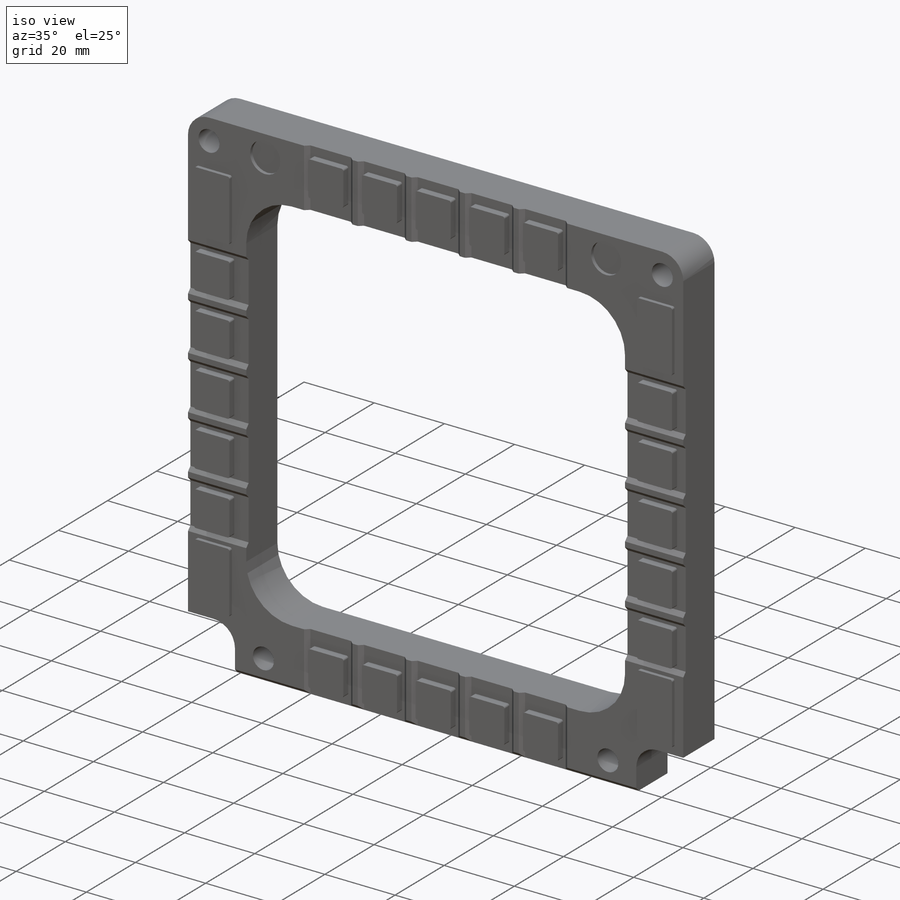
[diagram: iso view]
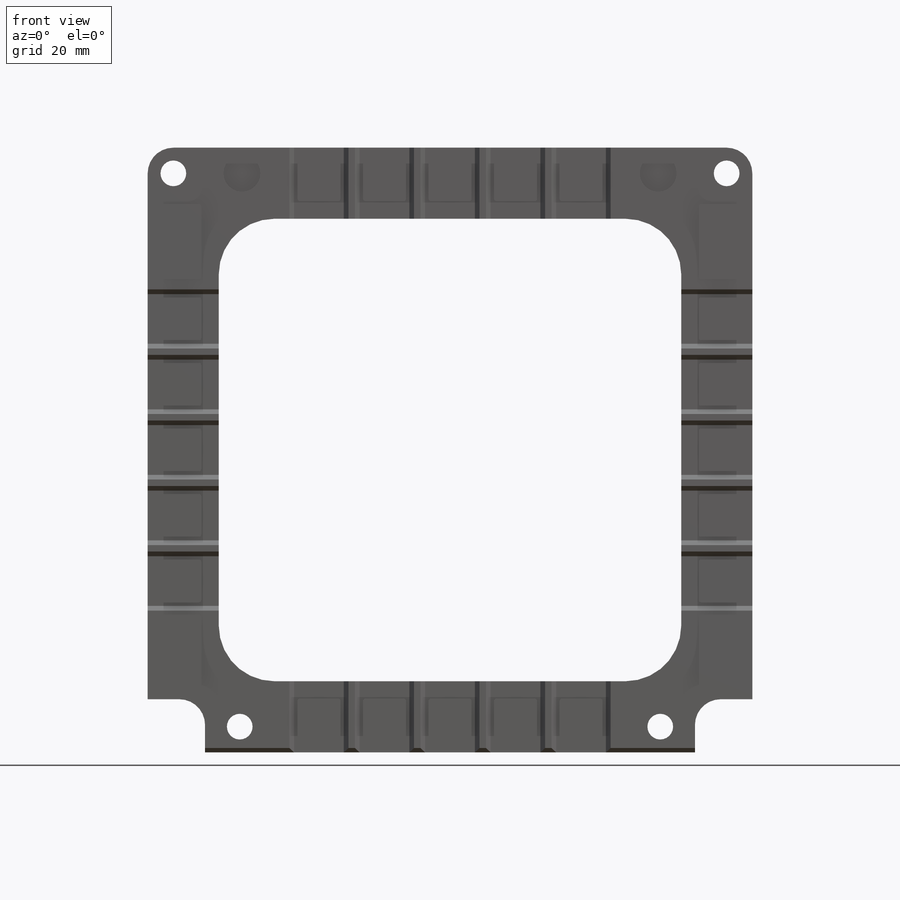
[diagram: front view]
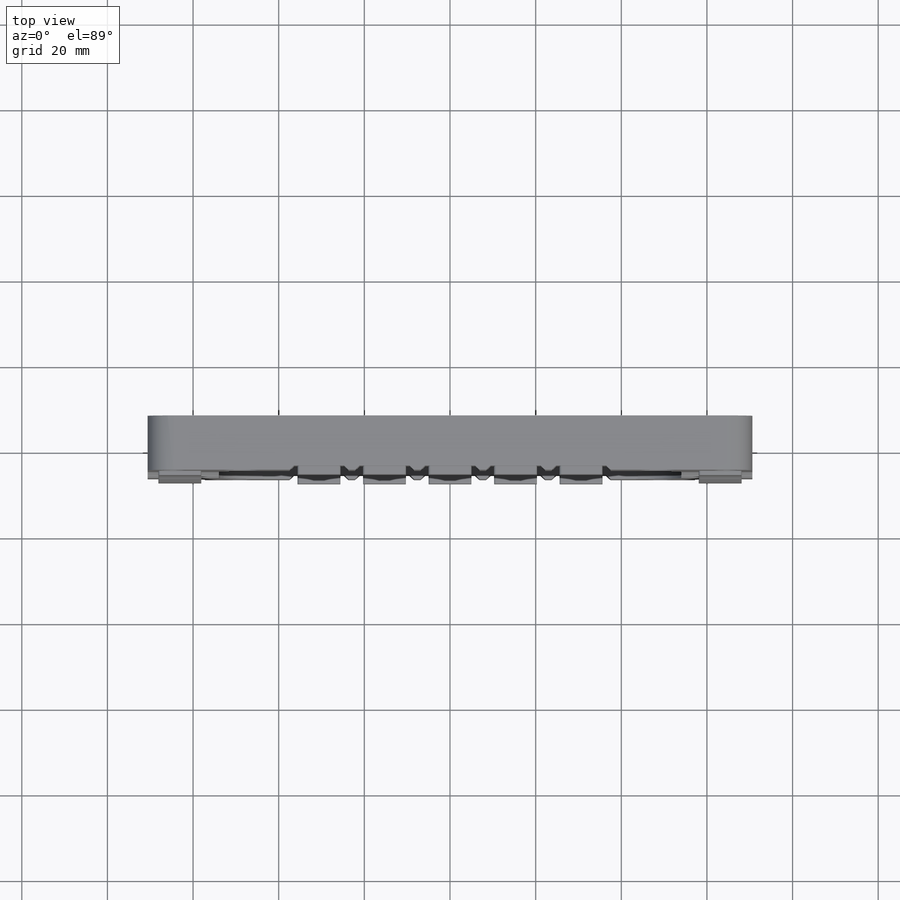
[diagram: top view]
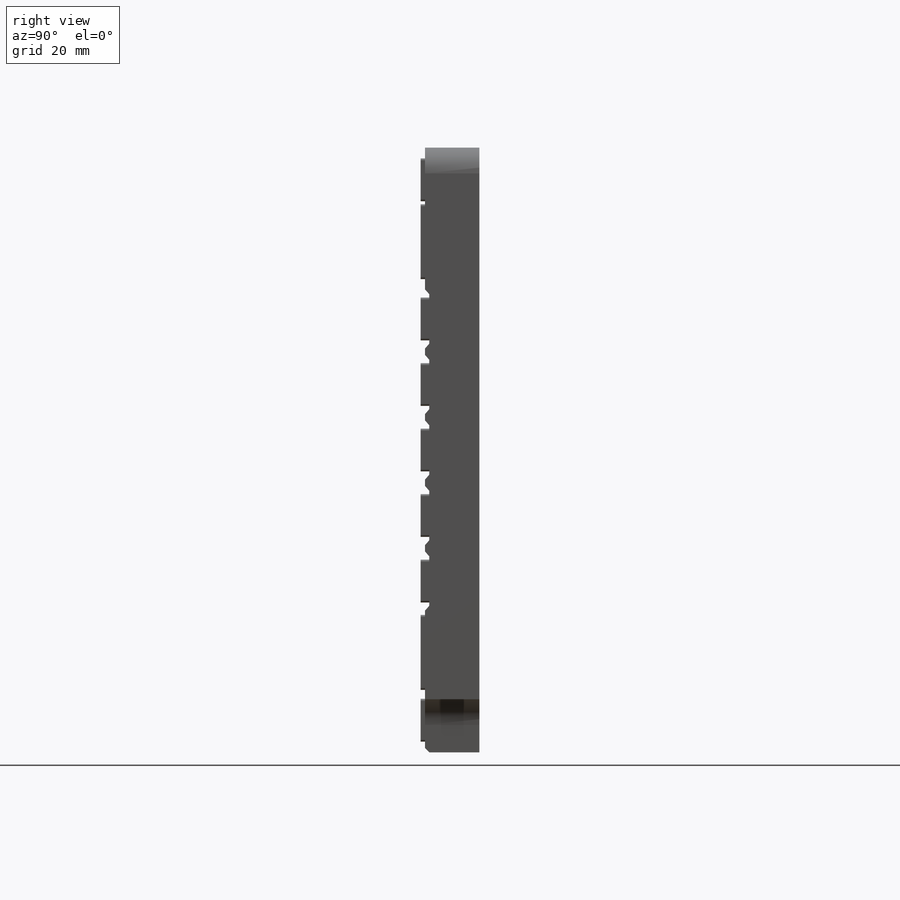
[diagram: right view]
SOLIDWORKS PART (.sldprt)
format: sldprt  version: not decoded by parser v0  size: 773,120 bytes
history: native  units: mm
features: sketch x6, cut_extrude x4, plane x3, extrude x2, material x1, chamfer x1, fillet x1 (+9 scaffold rows collapsed)
feature tree (27):
  scaffold x9  (default folders/planes/origin — collapsed)
  material  "Materiál <není určen>"
  plane  "Přední rovina"
  plane  "Horní rovina"
  plane  "Pravá rovina"
  sketch  "Skica1"  dims[c1.D3=6.0mm c1.D2=6.0mm c1.D6=6.0mm c1.D1=141.2mm c2.D2=141.2mm c2.D4=128.8mm c2.D1=13.4mm c3.D4=141.2mm c3.D5=141.2mm c3.D6=12.4mm]
  extrude  "Přidat vysunutím1"  Depth=12.7mm
  sketch  "Skica2"  dims[c1.D3=13.0mm c1.D4=~3.328285mm c1.D8=13.0mm c1.D1=108.0mm c1.D2=108.0mm c2.D4=6.0mm c2.D5=6.0mm c2.D6=6.0mm c2.D7=8.1mm]
  cut_extrude  "Odebrat vysunutím1"  Depth=12.7mm
  chamfer  "Zkosení1"  Distance=1mm Angle=45deg
  sketch  "Skica3"  dims[D1=1.5mm]
  cut_extrude  "Odebrat vysunutím2"  Depth=142.1mm
  sketch  "Skica4"  dims[D1=1.5mm]
  cut_extrude  "Odebrat vysunutím3"  Depth=142.1mm
  sketch  "Skica5"  dims[D1=22.0mm]
  cut_extrude  "Odebrat vysunutím4"  Depth=1mm
  sketch  "Skica7"  dims[c1.D1=10.0mm c1.D2=2.5mm c1.D3=0.8mm c1.D4=0.8mm c2.D1=10.0mm c2.D3=15.3mm c2.D4=10.0mm c2.D5=2.5mm c2.D6=0.8mm c2.D8=15.3mm c2.D9=4.3mm c2.D10=17.5mm c2.D11=2.2mm c2.D2=5.0 c2.D7=5.0]
  extrude  "Přidat vysunutím3"  Depth=2mm
  fillet  "Zaoblit3"  Radius=0.5mm
decode coverage: 14 of 14 modeling features carry decoded parameters
note: ~ marks probable driven/reference dimensions
note: suppression state not decoded; provenance and decode notes live in map.json
